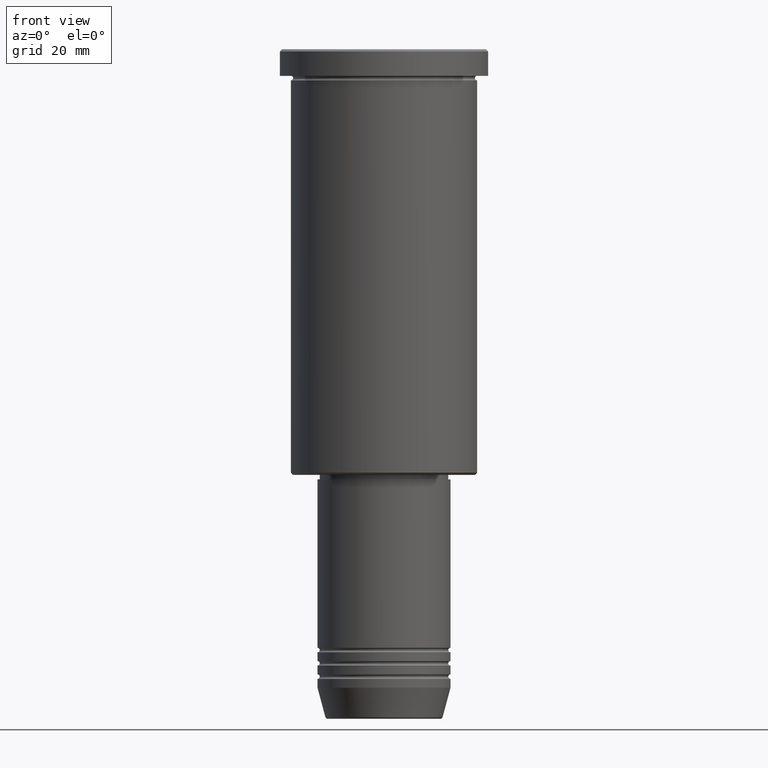
[diagram: clean part render]
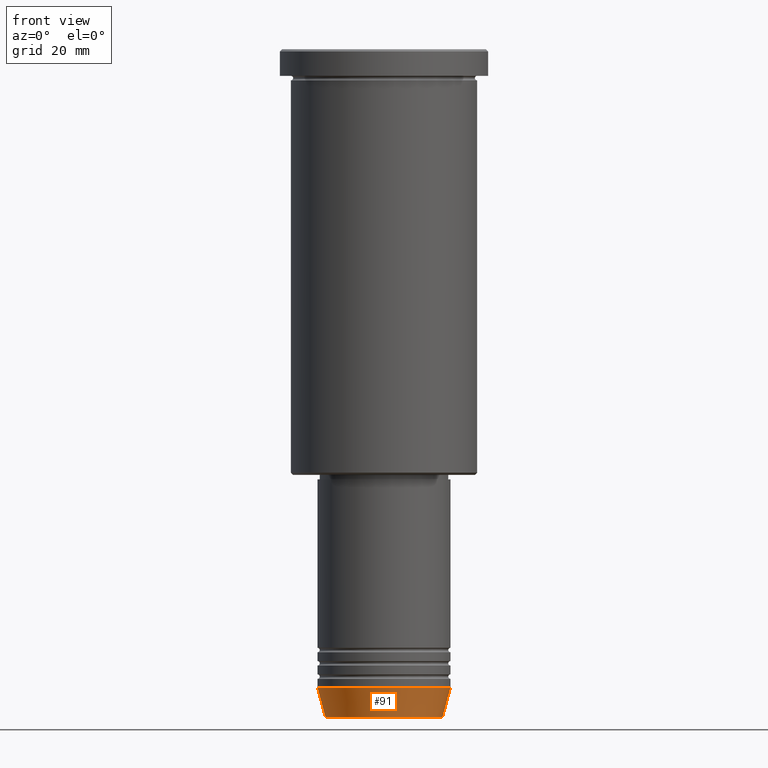
[diagram: same view with one face highlighted and labeled with its STEP entity id]
A machine part, front view. The second image highlights one B-rep face of the part: STEP entity #91.
In plain terms, the highlighted conical surface has half-angle 15 deg.
Its self-contained STEP definition (entity closure, byte-faithful):
#55 = EDGE_CURVE ( 'NONE', #606, #349, #780, .T. ) ;
#64 = CARTESIAN_POINT ( 'NONE',  ( 15.00000000000000000, 0.000000000000000000, -144.0000000000000284 ) ) ;
#91 = ADVANCED_FACE ( 'NONE', ( #940 ), #858, .T. ) ;
#108 = CARTESIAN_POINT ( 'NONE',  ( -15.00000000000000000, 1.836970198721029589E-15, -144.0000000000000284 ) ) ;
#109 = VECTOR ( 'NONE', #671, 1000.000000000000000 ) ;
#192 = CARTESIAN_POINT ( 'NONE',  ( -15.00000000000000000, 1.836970198721029589E-15, -144.0000000000000284 ) ) ;
#212 = ORIENTED_EDGE ( 'NONE', *, *, #466, .F. ) ;
#274 = DIRECTION ( 'NONE',  ( -0.000000000000000000, -0.000000000000000000, 1.000000000000000000 ) ) ;
#288 = LINE ( 'NONE', #192, #512 ) ;
#291 = DIRECTION ( 'NONE',  ( -0.000000000000000000, -0.000000000000000000, 1.000000000000000000 ) ) ;
#307 = AXIS2_PLACEMENT_3D ( 'NONE', #1023, #291, #653 ) ;
#349 = VERTEX_POINT ( 'NONE', #689 ) ;
#366 = CARTESIAN_POINT ( 'NONE',  ( 0.000000000000000000, 0.000000000000000000, -150.6294095225512706 ) ) ;
#466 = EDGE_CURVE ( 'NONE', #514, #724, #476, .T. ) ;
#476 = CIRCLE ( 'NONE', #1118, 15.00000000000000000 ) ;
#497 = EDGE_CURVE ( 'NONE', #606, #514, #288, .T. ) ;
#502 = EDGE_LOOP ( 'NONE', ( #1020, #1152, #1007, #212 ) ) ;
#512 = VECTOR ( 'NONE', #1017, 1000.000000000000000 ) ;
#514 = VERTEX_POINT ( 'NONE', #108 ) ;
#606 = VERTEX_POINT ( 'NONE', #872 ) ;
#623 = AXIS2_PLACEMENT_3D ( 'NONE', #366, #274, #637 ) ;
#626 = EDGE_CURVE ( 'NONE', #349, #724, #1052, .T. ) ;
#637 = DIRECTION ( 'NONE',  ( 1.000000000000000000, 0.000000000000000000, 0.000000000000000000 ) ) ;
#653 = DIRECTION ( 'NONE',  ( 1.000000000000000000, 0.000000000000000000, 0.000000000000000000 ) ) ;
#671 = DIRECTION ( 'NONE',  ( 0.2588190451025209060, 0.000000000000000000, 0.9659258262890682012 ) ) ;
#689 = CARTESIAN_POINT ( 'NONE',  ( 13.22365507213719305, 0.000000000000000000, -150.6294095225512706 ) ) ;
#724 = VERTEX_POINT ( 'NONE', #64 ) ;
#733 = CARTESIAN_POINT ( 'NONE',  ( 0.000000000000000000, 0.000000000000000000, -144.0000000000000284 ) ) ;
#771 = CARTESIAN_POINT ( 'NONE',  ( 15.00000000000000000, 0.000000000000000000, -144.0000000000000284 ) ) ;
#780 = CIRCLE ( 'NONE', #623, 13.22365507213719305 ) ;
#837 = DIRECTION ( 'NONE',  ( -0.000000000000000000, -0.000000000000000000, 1.000000000000000000 ) ) ;
#858 = CONICAL_SURFACE ( 'NONE', #307, 15.00000000000000000, 0.2617993877991495744 ) ;
#872 = CARTESIAN_POINT ( 'NONE',  ( -13.22365507213719305, 1.728200442216588780E-15, -150.6294095225512706 ) ) ;
#940 = FACE_OUTER_BOUND ( 'NONE', #502, .T. ) ;
#1007 = ORIENTED_EDGE ( 'NONE', *, *, #626, .T. ) ;
#1017 = DIRECTION ( 'NONE',  ( -0.2588190451025209060, 3.169619151431766790E-17, 0.9659258262890682012 ) ) ;
#1020 = ORIENTED_EDGE ( 'NONE', *, *, #497, .F. ) ;
#1023 = CARTESIAN_POINT ( 'NONE',  ( 0.000000000000000000, 0.000000000000000000, -144.0000000000000284 ) ) ;
#1052 = LINE ( 'NONE', #771, #109 ) ;
#1088 = DIRECTION ( 'NONE',  ( 1.000000000000000000, 0.000000000000000000, 0.000000000000000000 ) ) ;
#1118 = AXIS2_PLACEMENT_3D ( 'NONE', #733, #837, #1088 ) ;
#1152 = ORIENTED_EDGE ( 'NONE', *, *, #55, .T. ) ;